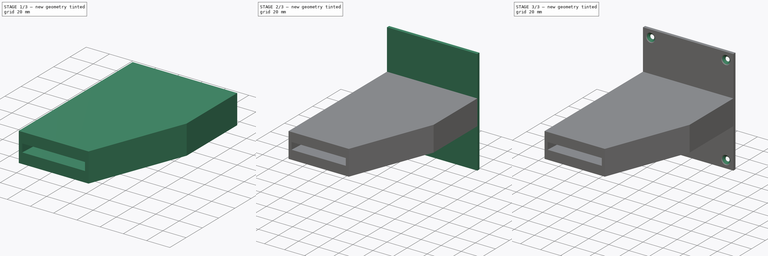
[diagram: build sequence overview — one tinted view per stage of 3, left to right]
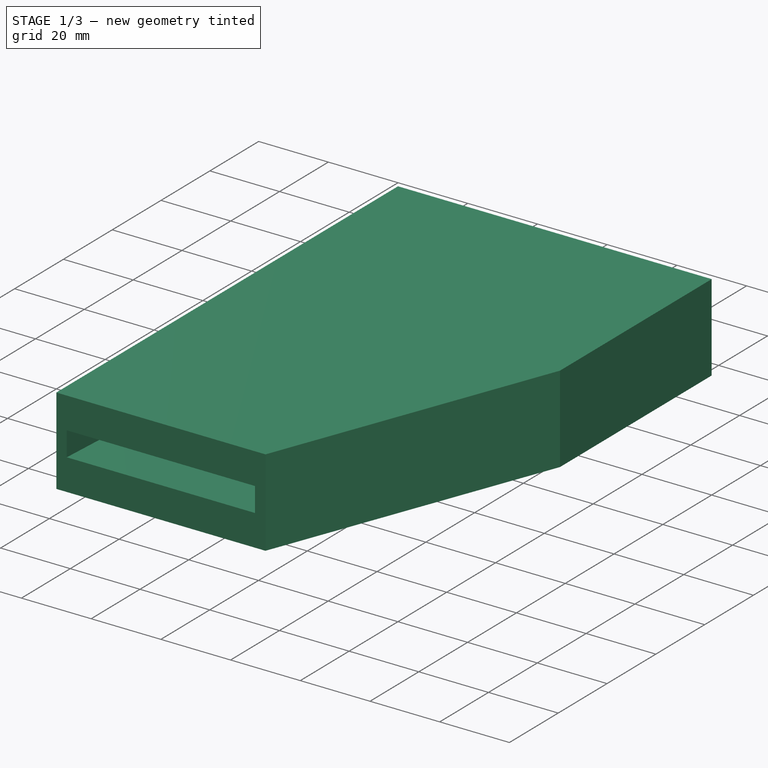
[diagram: stage 1 of 3 — iso view after this stage's code; geometry added in this stage tinted green]
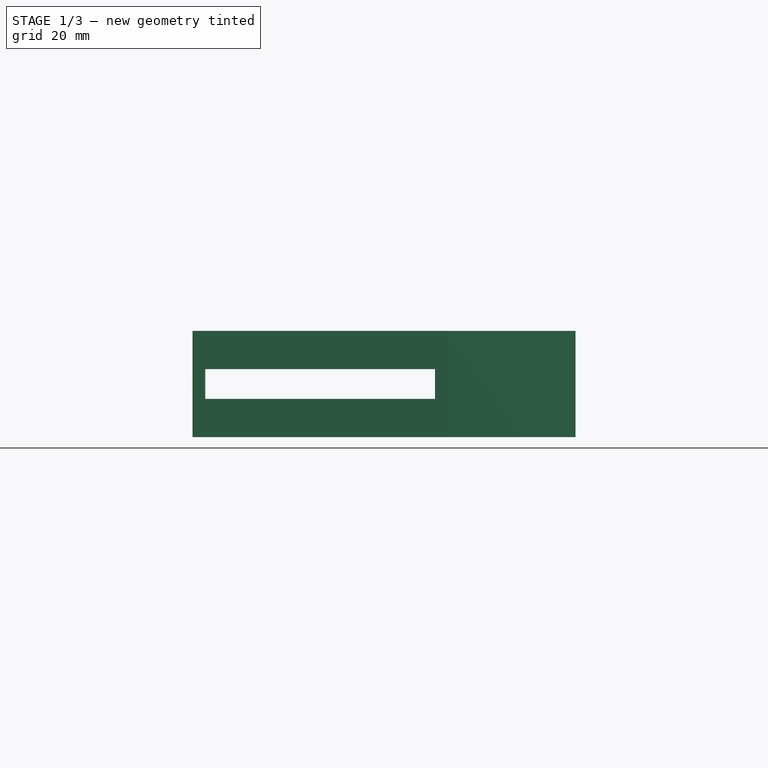
[diagram: stage 1 of 3 — front view after this stage's code; geometry added in this stage tinted green]
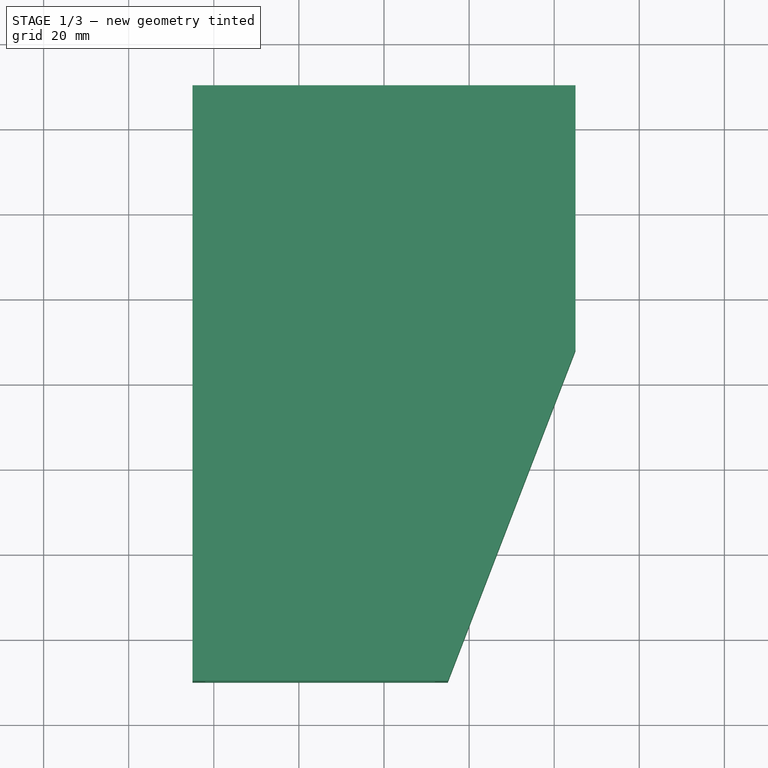
[diagram: stage 1 of 3 — top view after this stage's code; geometry added in this stage tinted green]
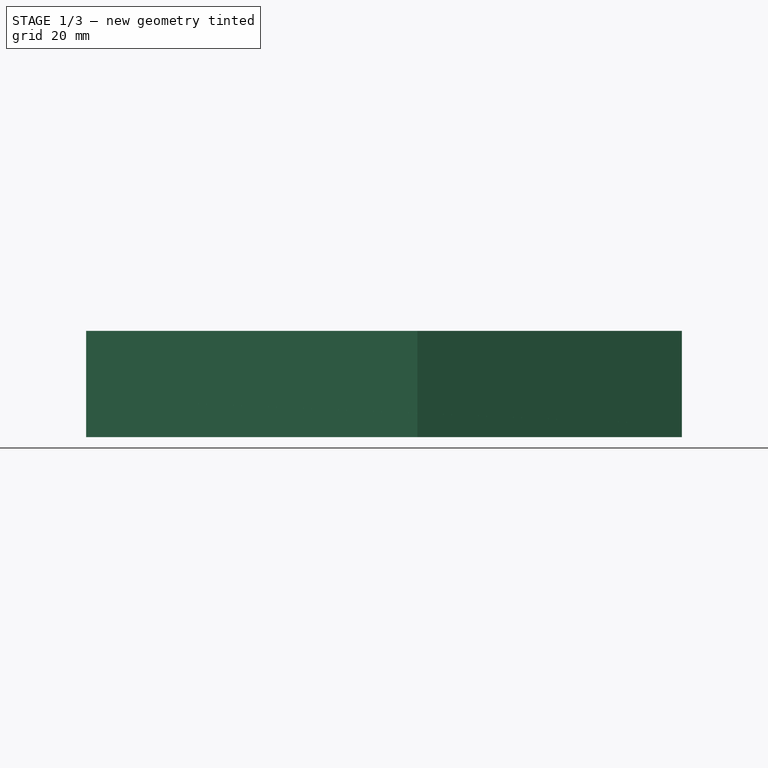
[diagram: stage 1 of 3 — right view after this stage's code; geometry added in this stage tinted green]
FCSTD DOCUMENT  (FreeCAD 0.19R23578 (Git))
Label: coin_funnel
License: All rights reserved
LicenseURL: http://en.wikipedia.org/wiki/All_rights_reserved
objects: Sketcher::SketchObject×8, PartDesign::Pad×2, PartDesign::SubtractiveLoft×1, PartDesign::Pocket×1, PartDesign::Hole×1, PartDesign::Mirrored×1, PartDesign::Body×1
note: 20 computed .brp shape members not serialized (recipe doc carries the construction recipe); baked Part::Feature solids carry a one-line shape summary decoded from their .brp

FEATURE [Sketcher::SketchObject] Sketch
  MapMode = 5
  sketch-geometry (6):
    g0: LineSegment StartX=-45 StartY=70 StartZ=0 EndX=-45 EndY=-21.5319 EndZ=0
    g1: LineSegment StartX=-45 StartY=-21.5319 StartZ=0 EndX=-45 EndY=-70 EndZ=0
    g2: LineSegment StartX=-45 StartY=-70 StartZ=0 EndX=15 EndY=-70 EndZ=0
    g3: LineSegment StartX=15 StartY=-70 StartZ=0 EndX=45 EndY=7.83891 EndZ=0
    g4: LineSegment StartX=-45 StartY=70 StartZ=0 EndX=45 EndY=70 EndZ=0
    g5: LineSegment StartX=45 StartY=70 StartZ=0 EndX=45 EndY=7.83891 EndZ=0
  constraints (16):
    c: Coincident(g2,g1)
    c: DistanceX(g2,g2) = 60
    c: Coincident(g3,g2)
    c: Distance(g3) = 83.42
    c: Coincident(g4,g5)
    c: Vertical(g5)
    c: DistanceY(g1,g4) = 140
    c: Coincident(g0,g4)
    c: Coincident(g5,g3)
    c: Coincident(g0,g1)
    c: Symmetric(g4,g0,g-2)
    c: Distance(g4) = 90
    c: Distance(g0,g1) = 48.4681
    c: Parallel(g0,g5)
    c: Parallel(g4,g2)
    c: Symmetric(g1,g0,g-1)
FEATURE [PartDesign::Pad] Pad
  Direction = (1,1,1)
  Length = 25
  Length2 = 100
  Profile = -> Sketch
  Type = 0
FEATURE [Sketcher::SketchObject] Sketch001
  ExternalGeometry = -> [Pad]
  MapMode = 5
  Placement = pos=(0,70,0) rot=(0,0.707107,0.707107;3.14159rad)
  Support = -> [Pad]
  sketch-geometry (4):
    g0: LineSegment StartX=-42 StartY=22 StartZ=0 EndX=42 EndY=22 EndZ=0
    g1: LineSegment StartX=42 StartY=22 StartZ=0 EndX=42 EndY=3 EndZ=0
    g2: LineSegment StartX=42 StartY=3 StartZ=0 EndX=-42 EndY=3 EndZ=0
    g3: LineSegment StartX=-42 StartY=3 StartZ=0 EndX=-42 EndY=22 EndZ=0
  constraints (12):
    c: Coincident(g0,g1)
    c: Coincident(g1,g2)
    c: Coincident(g2,g3)
    c: Coincident(g3,g0)
    c: Horizontal(g0)
    c: Horizontal(g2)
    c: Vertical(g1)
    c: Vertical(g3)
    c: DistanceX(g-4,g0) = 3
    c: DistanceX(g0,g-5) = 3
    c: DistanceY(g0,g-4) = 3
    c: DistanceY(g-6,g2) = 3
FEATURE [Sketcher::SketchObject] Sketch002
  ExternalGeometry = -> [Pad]
  MapMode = 5
  Placement = pos=(0,-70,0) rot=(1,0,0;1.5708rad)
  Support = -> [Pad]
  expr: Constraints[11] = 25 / 2 - 7 / 2
  sketch-geometry (4):
    g0: LineSegment StartX=-42 StartY=16 StartZ=0 EndX=12 EndY=16 EndZ=0
    g1: LineSegment StartX=12 StartY=16 StartZ=0 EndX=12 EndY=9 EndZ=0
    g2: LineSegment StartX=12 StartY=9 StartZ=0 EndX=-42 EndY=9 EndZ=0
    g3: LineSegment StartX=-42 StartY=9 StartZ=0 EndX=-42 EndY=16 EndZ=0
  constraints (12):
    c: Coincident(g0,g1)
    c: Coincident(g1,g2)
    c: Coincident(g2,g3)
    c: Coincident(g3,g0)
    c: Horizontal(g0)
    c: Horizontal(g2)
    c: Vertical(g1)
    c: Vertical(g3)
    c: DistanceX(g-4,g0) = 3
    c: DistanceX(g0,g-5) = 3
    c: DistanceY(g2,g0) = 7
    c: DistanceY(g0,g-4) = 9
FEATURE [PartDesign::SubtractiveLoft] SubtractiveLoft
  BaseFeature = -> Pad
  Closed = false
  Profile = -> Sketch001
  Ruled = false
  Sections = -> [Sketch002]
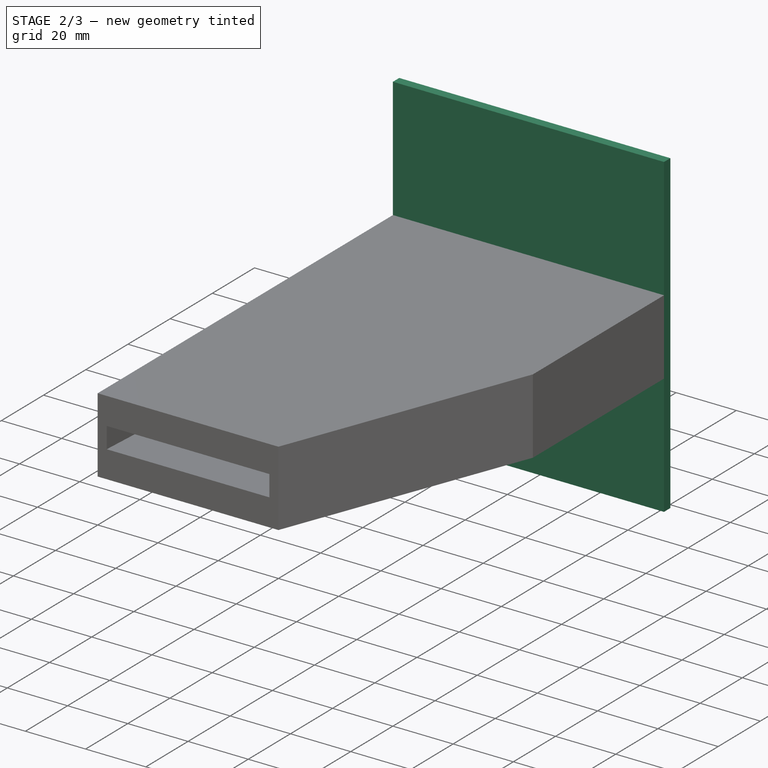
[diagram: stage 2 of 3 — iso view after this stage's code; geometry added in this stage tinted green]
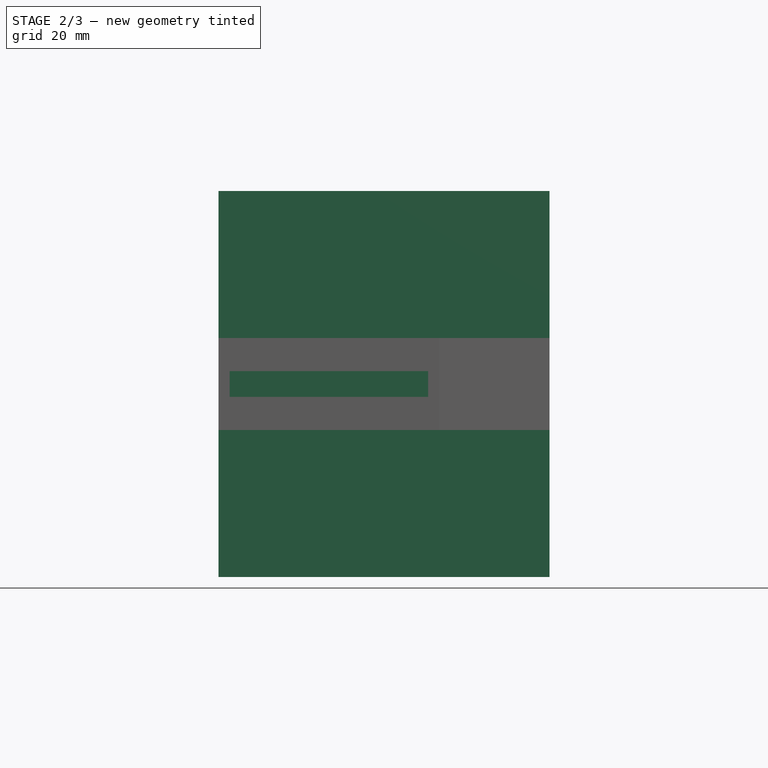
[diagram: stage 2 of 3 — front view after this stage's code; geometry added in this stage tinted green]
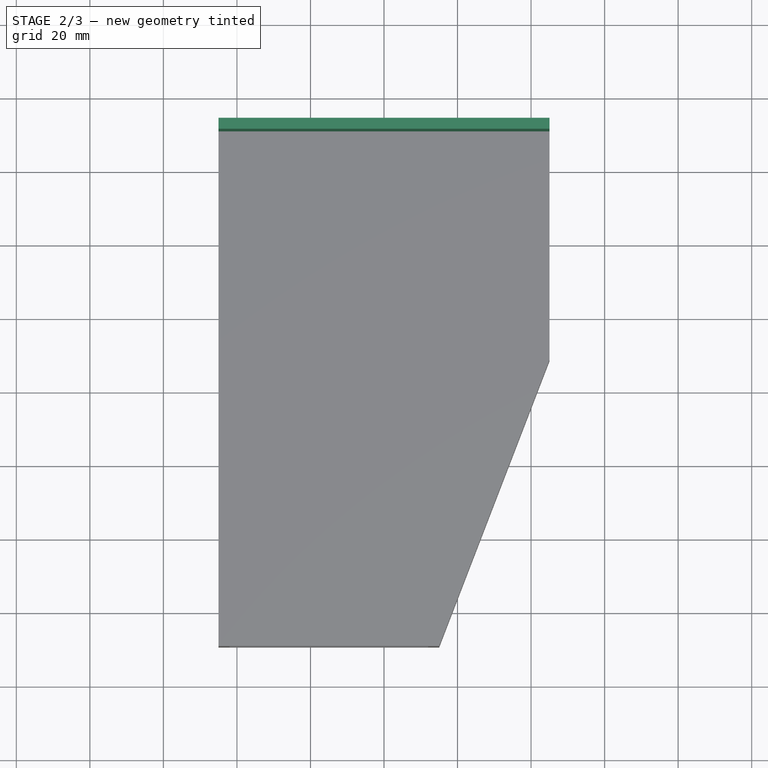
[diagram: stage 2 of 3 — top view after this stage's code; geometry added in this stage tinted green]
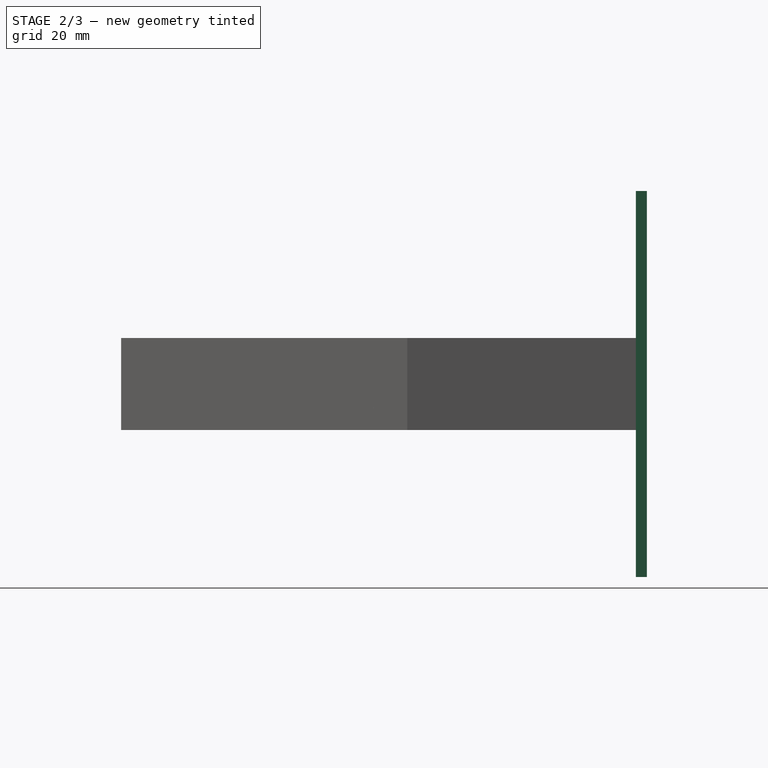
[diagram: stage 2 of 3 — right view after this stage's code; geometry added in this stage tinted green]
FEATURE [Sketcher::SketchObject] Sketch003
  ExternalGeometry = -> [SubtractiveLoft]
  MapMode = 5
  Placement = pos=(-45,2.79e-14,0) rot=(-0.57735,0.57735,0.57735;4.18879rad)
  Support = -> [SubtractiveLoft]
  sketch-geometry (4):
    g0: LineSegment StartX=-67 StartY=22 StartZ=0 EndX=21.5319 EndY=22 EndZ=0
    g1: LineSegment StartX=21.5319 StartY=22 StartZ=0 EndX=21.5319 EndY=3 EndZ=0
    g2: LineSegment StartX=21.5319 StartY=3 StartZ=0 EndX=-67 EndY=3 EndZ=0
    g3: LineSegment StartX=-67 StartY=3 StartZ=0 EndX=-67 EndY=22 EndZ=0
  constraints (12):
    c: Coincident(g0,g1)
    c: Coincident(g1,g2)
    c: Coincident(g2,g3)
    c: Coincident(g3,g0)
    c: Horizontal(g0)
    c: Horizontal(g2)
    c: Vertical(g1)
    c: Vertical(g3)
    c: DistanceY(g0,g-4) = 3
    c: DistanceY(g-6,g1) = 3
    c: DistanceX(g1,g-6) = 0
    c: DistanceX(g-5,g0) = 3
FEATURE [PartDesign::Pocket] Pocket
  BaseFeature = -> SubtractiveLoft
  Length = 5
  Length2 = 100
  Profile = -> Sketch003
  Type = 0
FEATURE [Sketcher::SketchObject] Sketch004
  ExternalGeometry = -> [Pocket]
  MapMode = 5
  Placement = pos=(0,70,0) rot=(0,0.707107,0.707107;3.14159rad)
  Support = -> [Pocket]
  sketch-geometry (4):
    g0: LineSegment StartX=-45 StartY=65 StartZ=0 EndX=45 EndY=65 EndZ=0
    g1: LineSegment StartX=45 StartY=65 StartZ=0 EndX=45 EndY=-40 EndZ=0
    g2: LineSegment StartX=45 StartY=-40 StartZ=0 EndX=-45 EndY=-40 EndZ=0
    g3: LineSegment StartX=-45 StartY=-40 StartZ=0 EndX=-45 EndY=65 EndZ=0
  constraints (12):
    c: Coincident(g0,g1)
    c: Coincident(g1,g2)
    c: Coincident(g2,g3)
    c: Coincident(g3,g0)
    c: Horizontal(g0)
    c: Horizontal(g2)
    c: Vertical(g1)
    c: Vertical(g3)
    c: DistanceY(g-4,g0) = 40
    c: DistanceY(g2,g-5) = 40
    c: DistanceX(g-4,g0) = 0
    c: DistanceX(g-6,g0) = 0
FEATURE [PartDesign::Pad] Pad001
  BaseFeature = -> Pocket
  Direction = (1,1,1)
  Length = 3
  Length2 = 100
  Profile = -> Sketch004
  Type = 0
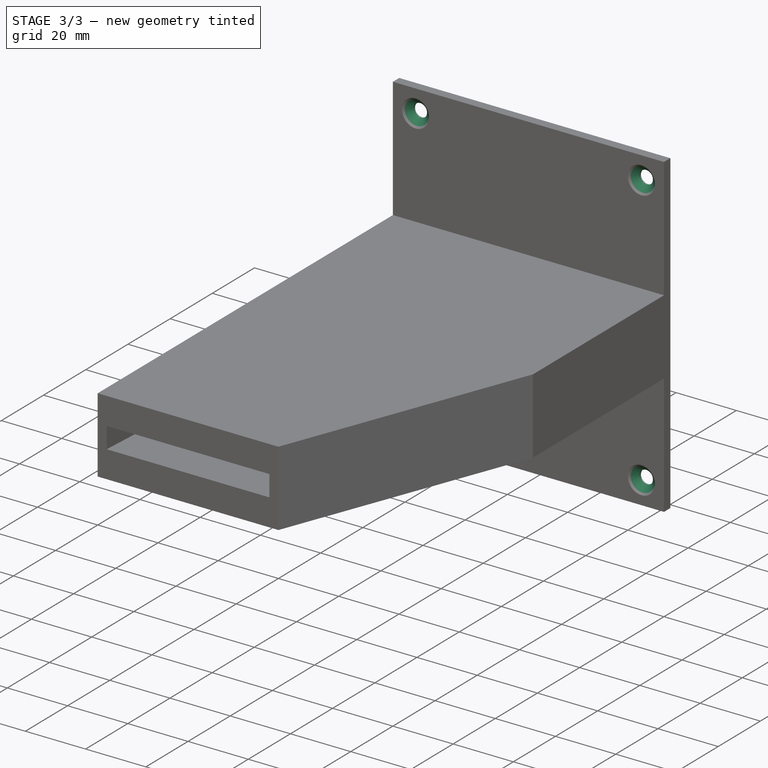
[diagram: stage 3 of 3 — iso view after this stage's code; geometry added in this stage tinted green]
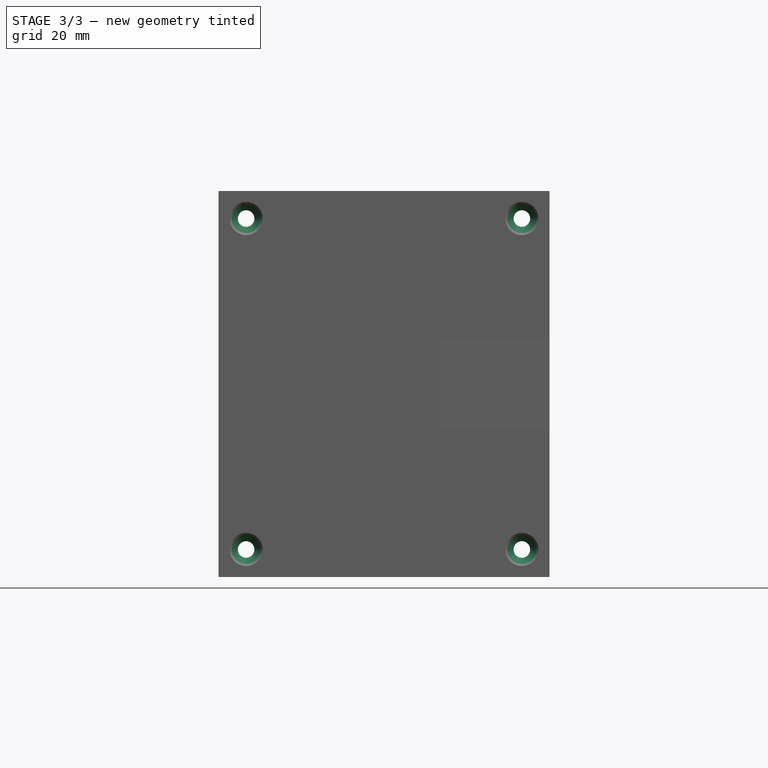
[diagram: stage 3 of 3 — front view after this stage's code; geometry added in this stage tinted green]
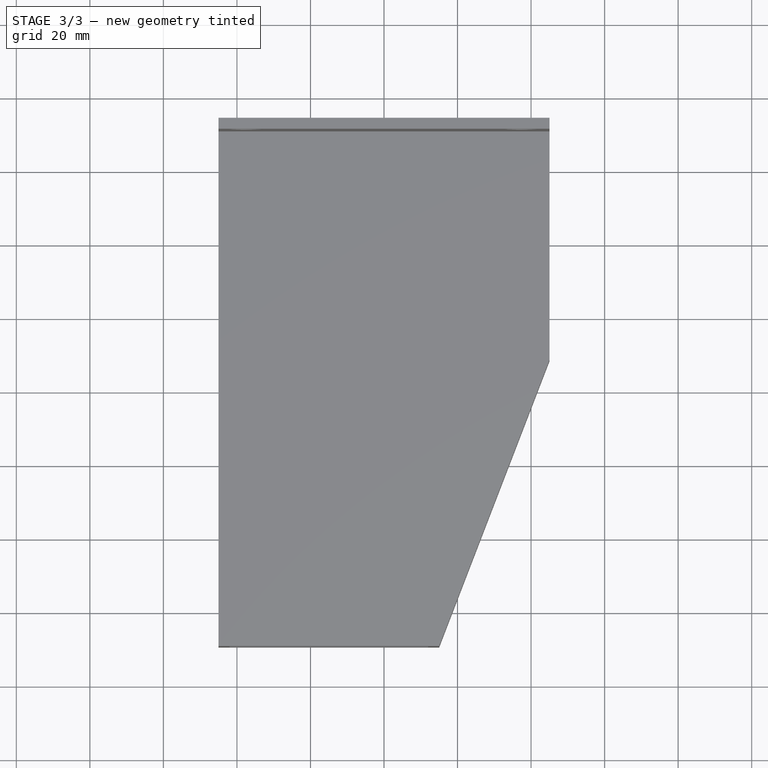
[diagram: stage 3 of 3 — top view after this stage's code; geometry added in this stage tinted green]
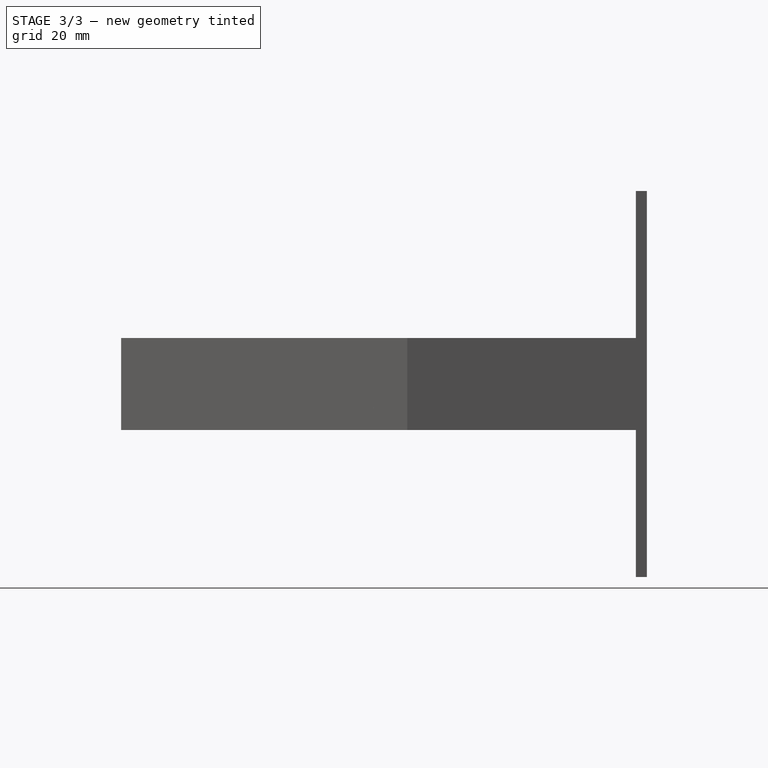
[diagram: stage 3 of 3 — right view after this stage's code; geometry added in this stage tinted green]
FEATURE [Sketcher::SketchObject] Sketch005
  ExternalGeometry = -> [Pad001]
  MapMode = 5
  Placement = pos=(0,70,-1.89e-14) rot=(1,0,0;1.5708rad)
  Support = -> [Pad001]
  sketch-geometry (6):
    g0: Circle CenterX=-37.5 CenterY=57.5 CenterZ=0 NormalX=0 NormalY=0 NormalZ=1 AngleXU=0 Radius=2.5
    g1: LineSegment StartX=-45 StartY=57.5 StartZ=0 EndX=-37.5 EndY=57.5 EndZ=0
    g2: LineSegment StartX=-37.5 StartY=57.5 StartZ=0 EndX=-37.5 EndY=65 EndZ=0
    g3: Circle CenterX=-37.5 CenterY=-32.5 CenterZ=0 NormalX=0 NormalY=0 NormalZ=1 AngleXU=0 Radius=2.5
    g4: LineSegment StartX=-45 StartY=-32.5 StartZ=0 EndX=-37.5 EndY=-32.5 EndZ=0
    g5: LineSegment StartX=-37.5 StartY=-40 StartZ=0 EndX=-37.5 EndY=-32.5 EndZ=0
  constraints (18):
    c: Diameter(g0) = 5
    c: PointOnObject(g1,g-4)
    c: Coincident(g1,g0)
    c: Horizontal(g1)
    c: Distance(g1) = 7.5
    c: Coincident(g2,g0)
    c: DistanceX(g-4,g2) = 7.5
    c: DistanceY(g0,g2) = 7.5
    c: Coincident(g4,g3)
    c: Horizontal(g4)
    c: Coincident(g5,g3)
    c: Distance(g4) = 7.5
    c: PointOnObject(g4,g-8)
    c: Distance(g5) = 7.5
    c: PointOnObject(g5,g-7)
    c: Diameter(g3) = 5
    c: Distance(g5,g-8) = 7.5
    c: DistanceY(g2,g-4) = 0
FEATURE [PartDesign::Hole] Hole
  BaseFeature = -> Pad001
  Depth = 25
  DepthType = 0
  Diameter = 4.5
  DrillPoint = 1
  DrillPointAngle = 118
  HoleCutCountersinkAngle = 90
  HoleCutDepth = 0
  HoleCutDiameter = 9
  HoleCutType = 7
  ModelActualThread = false
  Profile = -> Sketch005
  Tapered = false
  TaperedAngle = 90
  ThreadAngle = 60
  ThreadClass = 0
  ThreadCutOffInner = 0.0541266
  ThreadCutOffOuter = 0.108253
  ThreadDirection = 0
  ThreadFit = 0
  ThreadPitch = 0.5
  ThreadSize = 11
  ThreadType = 1
  Threaded = false
FEATURE [PartDesign::Mirrored] Mirrored
  BaseFeature = -> Hole
  MirrorPlane = -> Sketch005 [V_Axis]
  Originals = -> [Hole]
FEATURE [Sketcher::SketchObject] Sketch006
  MapMode = 5
  Placement = pos=(45,0,0) rot=(0.57735,0.57735,0.57735;2.0944rad)
  Support = -> [Mirrored]
FEATURE [Sketcher::SketchObject] Sketch007
  ExternalGeometry = -> [Mirrored]
  MapMode = 5
  Placement = pos=(-45,2.79e-14,0) rot=(-0.57735,0.57735,0.57735;4.18879rad)
  Support = -> [Mirrored]
FEATURE [PartDesign::Body] Body
  Group = -> [Sketch,Pad,Sketch001,Sketch002,SubtractiveLoft,Sketch003,Pocket,Sketch004,Pad001,Sketch005,Hole,Mirrored,Sketch006,Sketch007]
  Origin = -> Origin
  Tip = -> Mirrored
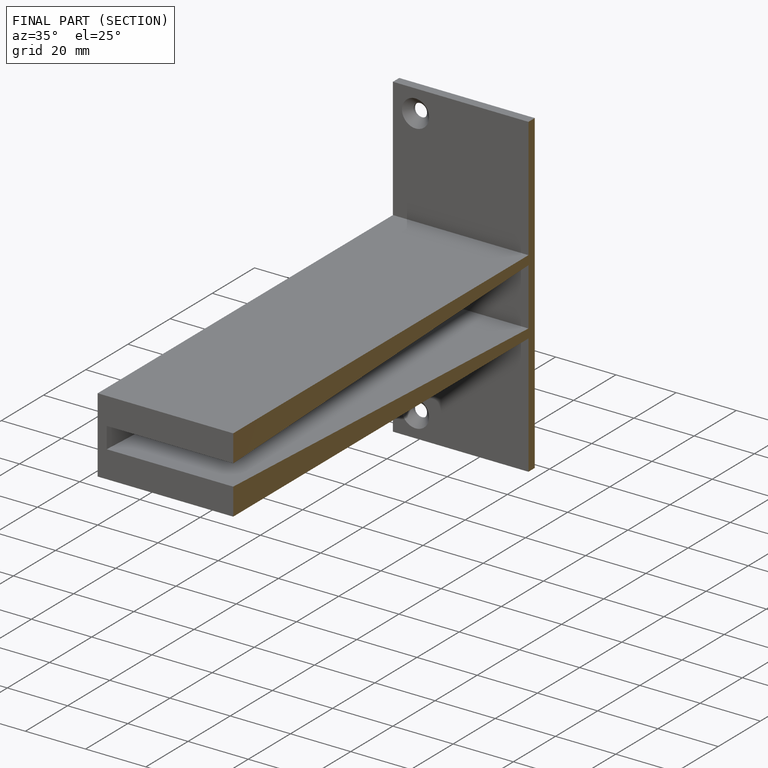
[diagram: finished part — half-section view (interior)]
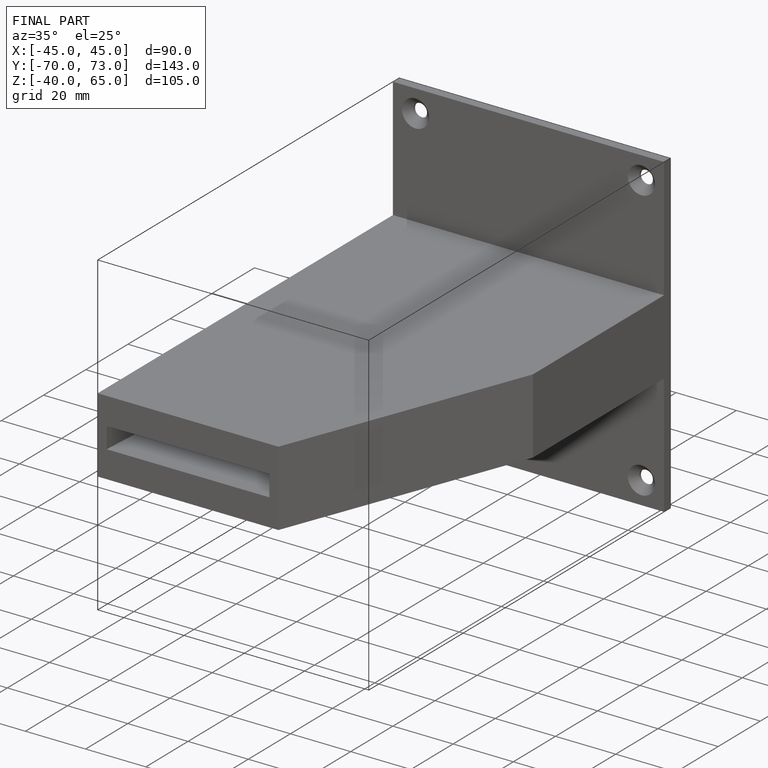
[diagram: finished part — iso view with bounding-box wireframe]
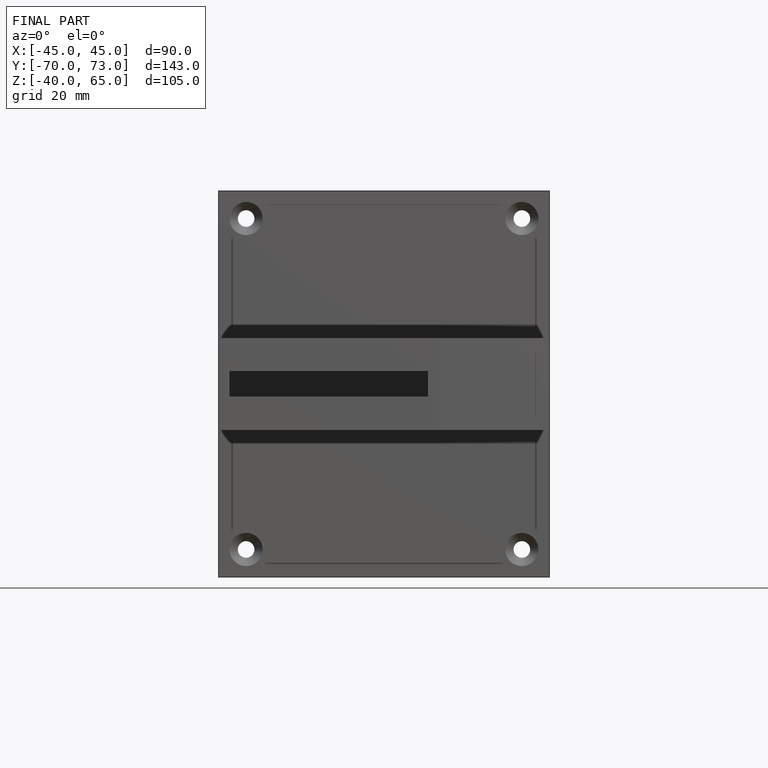
[diagram: finished part — front view with bounding-box wireframe]
